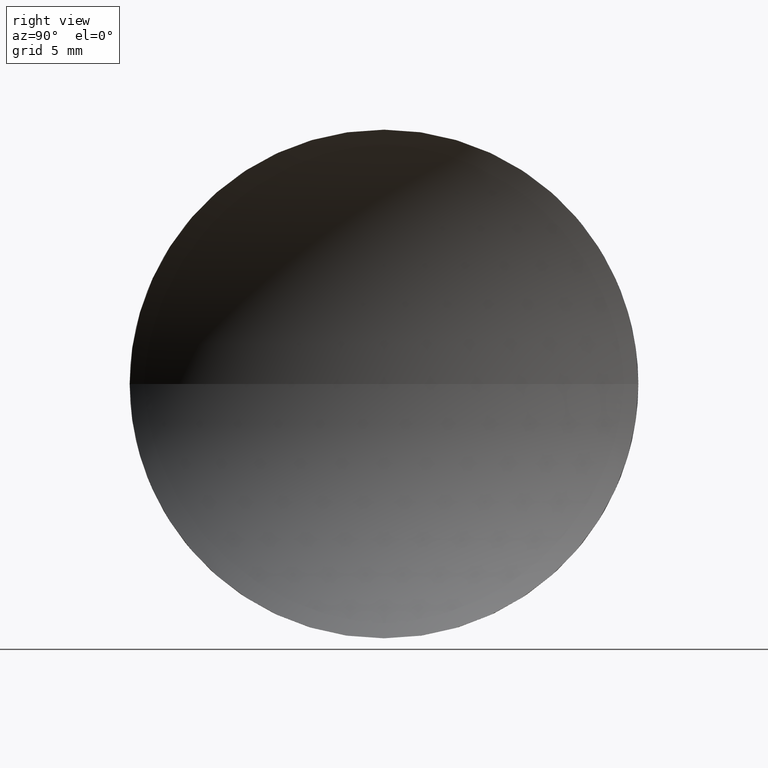
[diagram: clean part render]
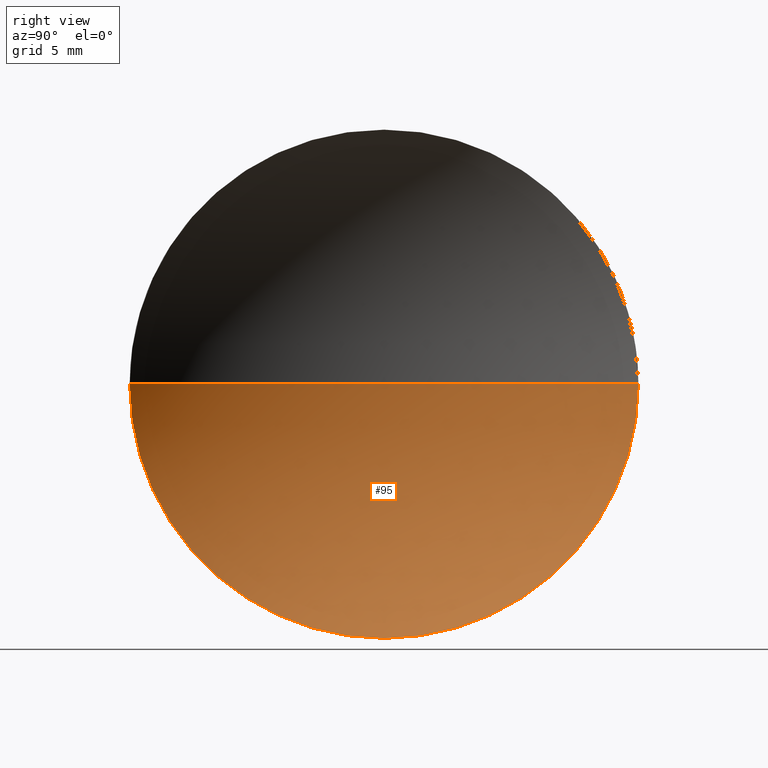
[diagram: same view with one face highlighted and labeled with its STEP entity id]
A machine part, right view. The second image highlights one B-rep face of the part: STEP entity #95.
In plain terms, the highlighted spherical surface has radius 18.34 mm.
Its self-contained STEP definition (entity closure, byte-faithful):
#10 = CARTESIAN_POINT ( 'NONE',  ( 125.9716950220848900, 71.19398908659370300, 0.0000000000000000000 ) ) ;
#11 = CARTESIAN_POINT ( 'NONE',  ( 120.8629307920347200, 71.19398908659371700, 0.0000000000000000000 ) ) ;
#18 = CARTESIAN_POINT ( 'NONE',  ( 125.9716950220848900, 83.89398908659370600, 1.555301434917137400E-015 ) ) ;
#21 = VERTEX_POINT ( 'NONE', #45 ) ;
#31 = CARTESIAN_POINT ( 'NONE',  ( 125.9716950220848900, 71.19398908659370300, 0.0000000000000000000 ) ) ;
#32 = EDGE_CURVE ( 'NONE', #62, #133, #111, .T. ) ;
#35 = CIRCLE ( 'NONE', #65, 12.70000000000000300 ) ;
#36 = ORIENTED_EDGE ( 'NONE', *, *, #41, .F. ) ;
#37 = CARTESIAN_POINT ( 'NONE',  ( 139.2029307920347200, 71.19398908659371700, 0.0000000000000000000 ) ) ;
#40 = CARTESIAN_POINT ( 'NONE',  ( 125.9716950220848900, 71.19398908659370300, -12.70000000000000300 ) ) ;
#41 = EDGE_CURVE ( 'NONE', #62, #134, #73, .T. ) ;
#45 = CARTESIAN_POINT ( 'NONE',  ( 125.9716950220848900, 58.49398908659371400, 0.0000000000000000000 ) ) ;
#52 = EDGE_CURVE ( 'NONE', #21, #133, #130, .T. ) ;
#54 = DIRECTION ( 'NONE',  ( -1.000000000000000000, -0.0000000000000000000, -0.0000000000000000000 ) ) ;
#58 = DIRECTION ( 'NONE',  ( 0.0000000000000000000, -1.000000000000000000, -1.224646799147353000E-016 ) ) ;
#60 = DIRECTION ( 'NONE',  ( 0.0000000000000000000, 0.0000000000000000000, 1.000000000000000000 ) ) ;
#62 = VERTEX_POINT ( 'NONE', #18 ) ;
#65 = AXIS2_PLACEMENT_3D ( 'NONE', #10, #54, #156 ) ;
#73 = CIRCLE ( 'NONE', #118, 12.70000000000000300 ) ;
#78 = CARTESIAN_POINT ( 'NONE',  ( 139.2029307920347200, 71.19398908659371700, 0.0000000000000000000 ) ) ;
#81 = DIRECTION ( 'NONE',  ( 0.0000000000000000000, 0.0000000000000000000, 1.000000000000000000 ) ) ;
#88 = EDGE_CURVE ( 'NONE', #134, #21, #35, .T. ) ;
#91 = AXIS2_PLACEMENT_3D ( 'NONE', #78, #116, #128 ) ;
#95 = ADVANCED_FACE ( 'NONE', ( #177 ), #99, .F. ) ;
#96 = AXIS2_PLACEMENT_3D ( 'NONE', #37, #145, #58 ) ;
#97 = ORIENTED_EDGE ( 'NONE', *, *, #52, .F. ) ;
#99 = SPHERICAL_SURFACE ( 'NONE', #101, 18.33999999999999600 ) ;
#101 = AXIS2_PLACEMENT_3D ( 'NONE', #113, #81, #124 ) ;
#111 = CIRCLE ( 'NONE', #96, 18.33999999999999600 ) ;
#113 = CARTESIAN_POINT ( 'NONE',  ( 139.2029307920347200, 71.19398908659371700, 0.0000000000000000000 ) ) ;
#116 = DIRECTION ( 'NONE',  ( 0.0000000000000000000, 0.0000000000000000000, -1.000000000000000000 ) ) ;
#118 = AXIS2_PLACEMENT_3D ( 'NONE', #31, #129, #60 ) ;
#124 = DIRECTION ( 'NONE',  ( 0.0000000000000000000, -1.000000000000000000, 0.0000000000000000000 ) ) ;
#125 = EDGE_LOOP ( 'NONE', ( #36, #185, #97, #176 ) ) ;
#128 = DIRECTION ( 'NONE',  ( -1.000000000000000000, 0.0000000000000000000, 0.0000000000000000000 ) ) ;
#129 = DIRECTION ( 'NONE',  ( -1.000000000000000000, -0.0000000000000000000, -0.0000000000000000000 ) ) ;
#130 = CIRCLE ( 'NONE', #91, 18.33999999999999600 ) ;
#133 = VERTEX_POINT ( 'NONE', #11 ) ;
#134 = VERTEX_POINT ( 'NONE', #40 ) ;
#145 = DIRECTION ( 'NONE',  ( 0.0000000000000000000, -1.224646799147353200E-016, 1.000000000000000000 ) ) ;
#156 = DIRECTION ( 'NONE',  ( 0.0000000000000000000, 0.0000000000000000000, 1.000000000000000000 ) ) ;
#176 = ORIENTED_EDGE ( 'NONE', *, *, #88, .F. ) ;
#177 = FACE_OUTER_BOUND ( 'NONE', #125, .T. ) ;
#185 = ORIENTED_EDGE ( 'NONE', *, *, #32, .T. ) ;